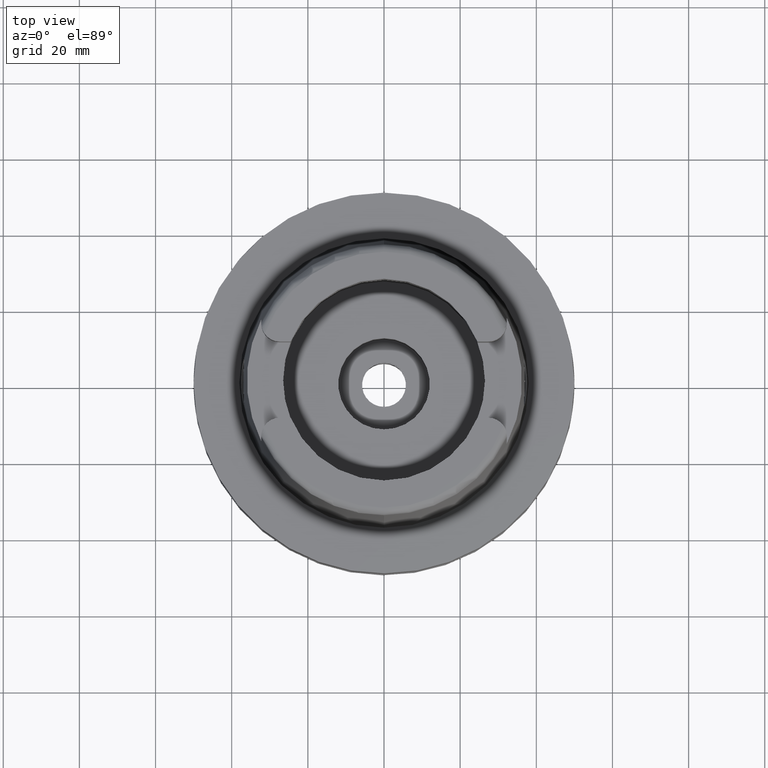
[diagram: clean part render]
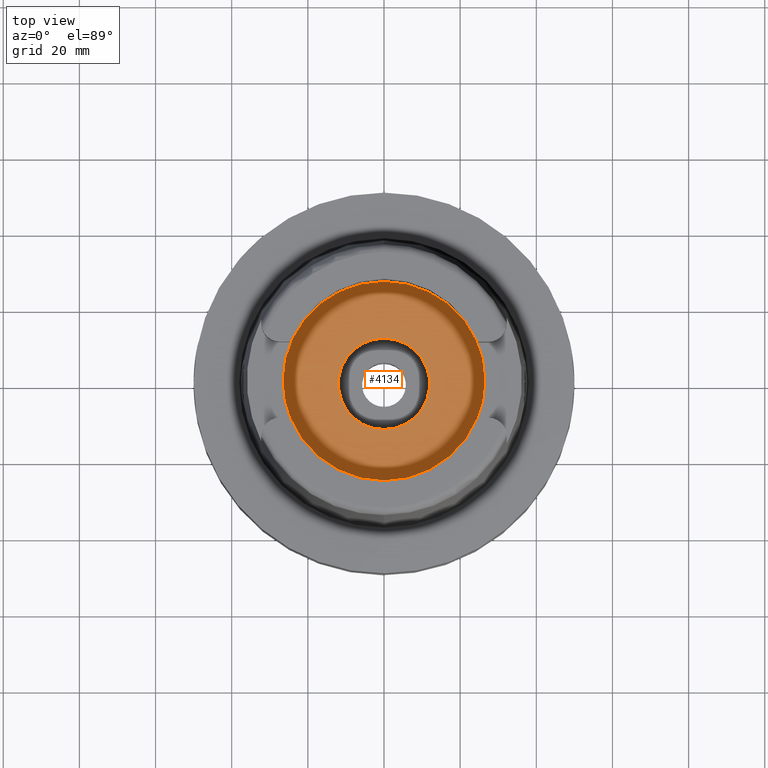
[diagram: same view with one face highlighted and labeled with its STEP entity id]
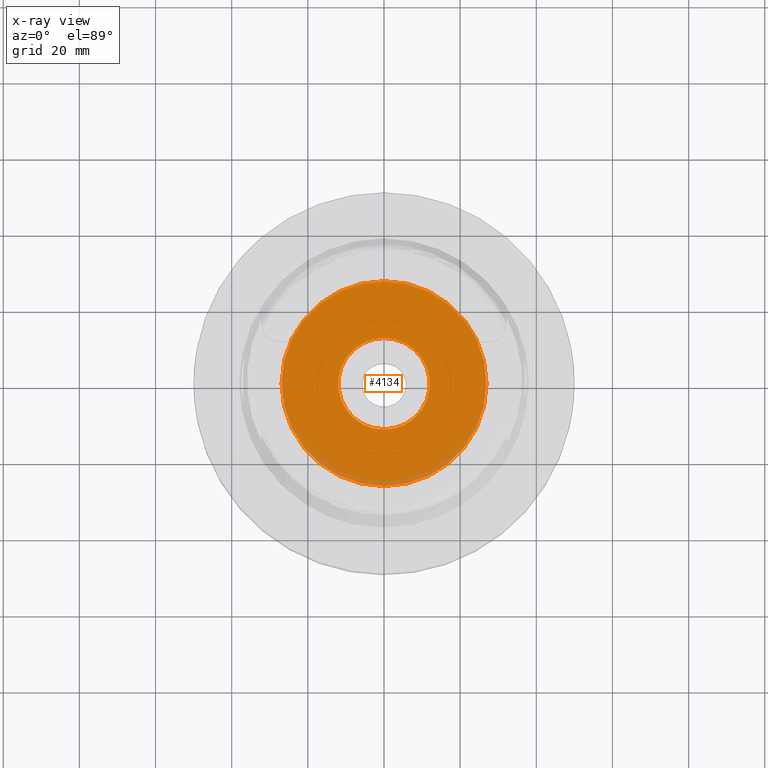
[diagram: x-ray of the same camera — body ghosted, the highlighted face saturated]
A machine part, top view. The second image highlights one B-rep face of the part: STEP entity #4134.
The next image is the same camera in x-ray: the body ghosted, the highlighted face saturated — about 5% of this face is hidden behind the body in this view.
In plain terms, the highlighted planar face has unit normal (0, 0, 1).
Its self-contained STEP definition (entity closure, byte-faithful):
#43 = AXIS2_PLACEMENT_3D ( 'NONE', #653, #1504, #5382 ) ;
#201 = EDGE_LOOP ( 'NONE', ( #2410, #2793 ) ) ;
#278 = CARTESIAN_POINT ( 'NONE',  ( 0.0000000000000000000, 26.89999999999999858, -12.44999999999999929 ) ) ;
#478 = CARTESIAN_POINT ( 'NONE',  ( 0.0000000000000000000, 12.00000000000000000, -12.44999999999999929 ) ) ;
#483 = VERTEX_POINT ( 'NONE', #684 ) ;
#629 = CARTESIAN_POINT ( 'NONE',  ( 0.0000000000000000000, -12.00000000000000000, -12.44999999999999929 ) ) ;
#634 = FACE_OUTER_BOUND ( 'NONE', #4661, .T. ) ;
#653 = CARTESIAN_POINT ( 'NONE',  ( 0.0000000000000000000, 0.0000000000000000000, -12.44999999999999929 ) ) ;
#684 = CARTESIAN_POINT ( 'NONE',  ( 0.0000000000000000000, -26.89999999999999858, -12.44999999999999929 ) ) ;
#1095 = EDGE_CURVE ( 'NONE', #4572, #2349, #5379, .T. ) ;
#1115 = AXIS2_PLACEMENT_3D ( 'NONE', #5081, #3351, #2950 ) ;
#1139 = DIRECTION ( 'NONE',  ( 0.0000000000000000000, 0.0000000000000000000, -1.000000000000000000 ) ) ;
#1144 = CARTESIAN_POINT ( 'NONE',  ( 0.0000000000000000000, 0.0000000000000000000, -12.44999999999999929 ) ) ;
#1297 = ORIENTED_EDGE ( 'NONE', *, *, #3475, .F. ) ;
#1504 = DIRECTION ( 'NONE',  ( 0.0000000000000000000, 0.0000000000000000000, 1.000000000000000000 ) ) ;
#1602 = DIRECTION ( 'NONE',  ( 0.0000000000000000000, 0.0000000000000000000, 1.000000000000000000 ) ) ;
#2340 = FACE_BOUND ( 'NONE', #201, .T. ) ;
#2349 = VERTEX_POINT ( 'NONE', #629 ) ;
#2410 = ORIENTED_EDGE ( 'NONE', *, *, #1095, .F. ) ;
#2429 = DIRECTION ( 'NONE',  ( 0.0000000000000000000, 1.000000000000000000, 0.0000000000000000000 ) ) ;
#2512 = VERTEX_POINT ( 'NONE', #278 ) ;
#2745 = AXIS2_PLACEMENT_3D ( 'NONE', #1144, #1602, #2429 ) ;
#2793 = ORIENTED_EDGE ( 'NONE', *, *, #2943, .F. ) ;
#2812 = CARTESIAN_POINT ( 'NONE',  ( 0.0000000000000000000, 0.0000000000000000000, -12.44999999999999929 ) ) ;
#2943 = EDGE_CURVE ( 'NONE', #2349, #4572, #5588, .T. ) ;
#2950 = DIRECTION ( 'NONE',  ( 0.0000000000000000000, -1.000000000000000000, 0.0000000000000000000 ) ) ;
#3351 = DIRECTION ( 'NONE',  ( 0.0000000000000000000, 0.0000000000000000000, 1.000000000000000000 ) ) ;
#3449 = EDGE_CURVE ( 'NONE', #483, #2512, #3923, .T. ) ;
#3475 = EDGE_CURVE ( 'NONE', #2512, #483, #3564, .T. ) ;
#3564 = CIRCLE ( 'NONE', #5089, 26.89999999999999858 ) ;
#3733 = CARTESIAN_POINT ( 'NONE',  ( 0.0000000000000000000, 0.0000000000000000000, -12.44999999999999929 ) ) ;
#3923 = CIRCLE ( 'NONE', #5271, 26.89999999999999858 ) ;
#4134 = ADVANCED_FACE ( 'NONE', ( #634, #2340 ), #4990, .T. ) ;
#4211 = DIRECTION ( 'NONE',  ( 0.0000000000000000000, -1.000000000000000000, 0.0000000000000000000 ) ) ;
#4572 = VERTEX_POINT ( 'NONE', #478 ) ;
#4617 = DIRECTION ( 'NONE',  ( 0.0000000000000000000, 1.000000000000000000, 0.0000000000000000000 ) ) ;
#4661 = EDGE_LOOP ( 'NONE', ( #1297, #4818 ) ) ;
#4818 = ORIENTED_EDGE ( 'NONE', *, *, #3449, .F. ) ;
#4990 = PLANE ( 'NONE',  #43 ) ;
#5023 = DIRECTION ( 'NONE',  ( 0.0000000000000000000, 0.0000000000000000000, -1.000000000000000000 ) ) ;
#5081 = CARTESIAN_POINT ( 'NONE',  ( 0.0000000000000000000, 0.0000000000000000000, -12.44999999999999929 ) ) ;
#5089 = AXIS2_PLACEMENT_3D ( 'NONE', #3733, #1139, #4617 ) ;
#5271 = AXIS2_PLACEMENT_3D ( 'NONE', #2812, #5023, #4211 ) ;
#5379 = CIRCLE ( 'NONE', #2745, 12.00000000000000000 ) ;
#5382 = DIRECTION ( 'NONE',  ( 1.000000000000000000, 0.0000000000000000000, 0.0000000000000000000 ) ) ;
#5588 = CIRCLE ( 'NONE', #1115, 12.00000000000000000 ) ;